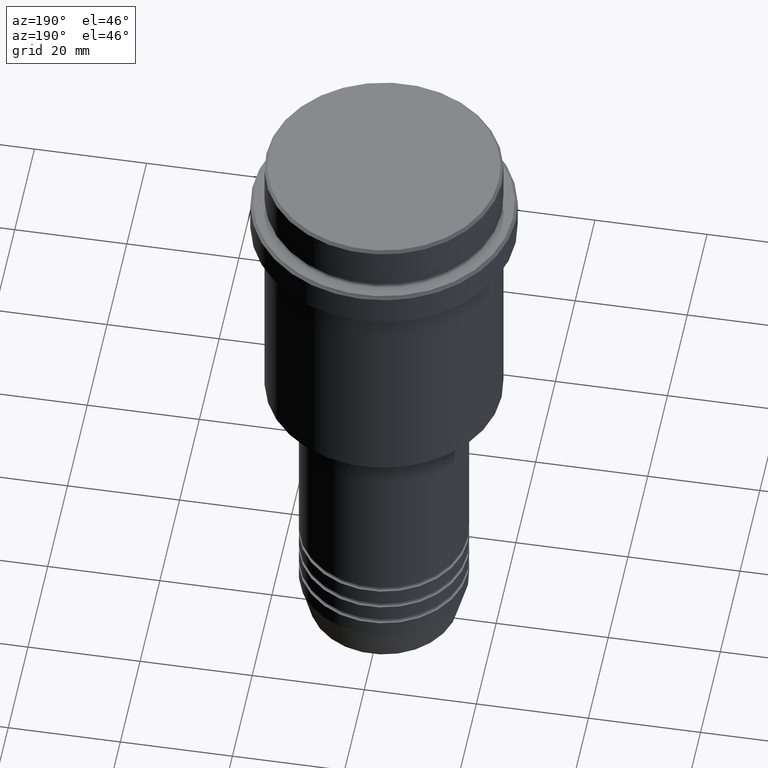
[diagram: clean part render]
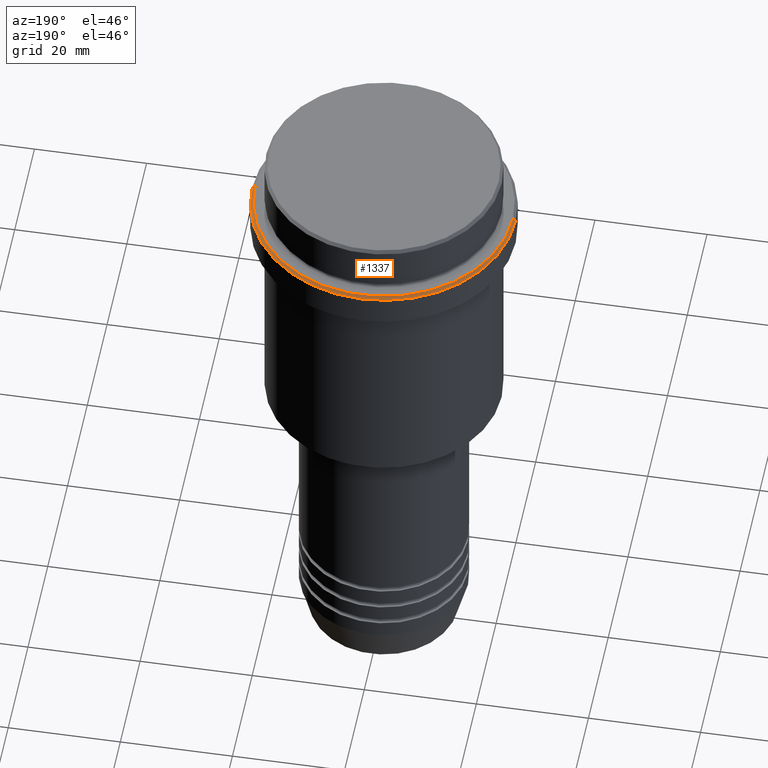
[diagram: same view with one face highlighted and labeled with its STEP entity id]
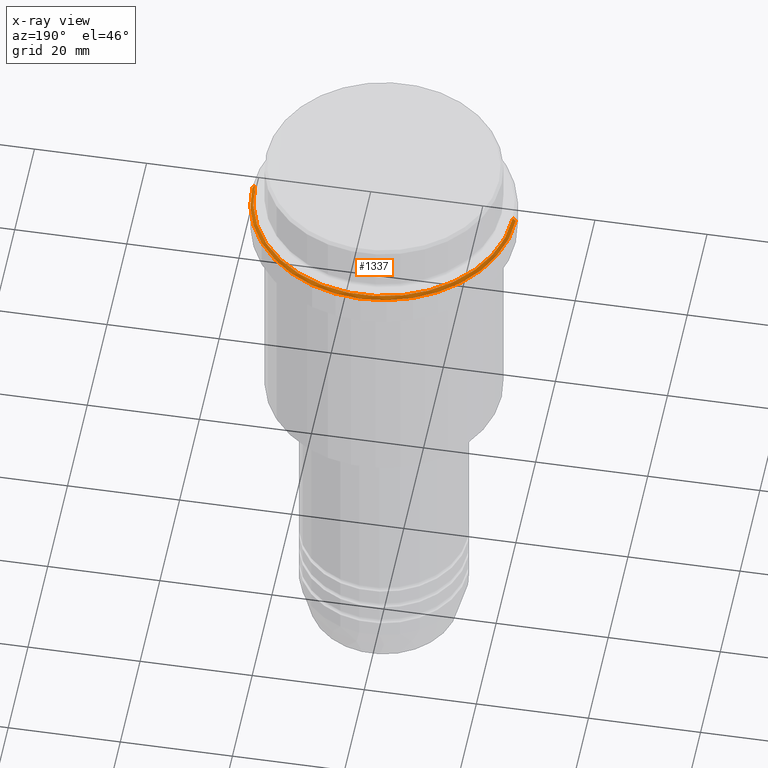
[diagram: x-ray of the same camera — body ghosted, the highlighted face saturated]
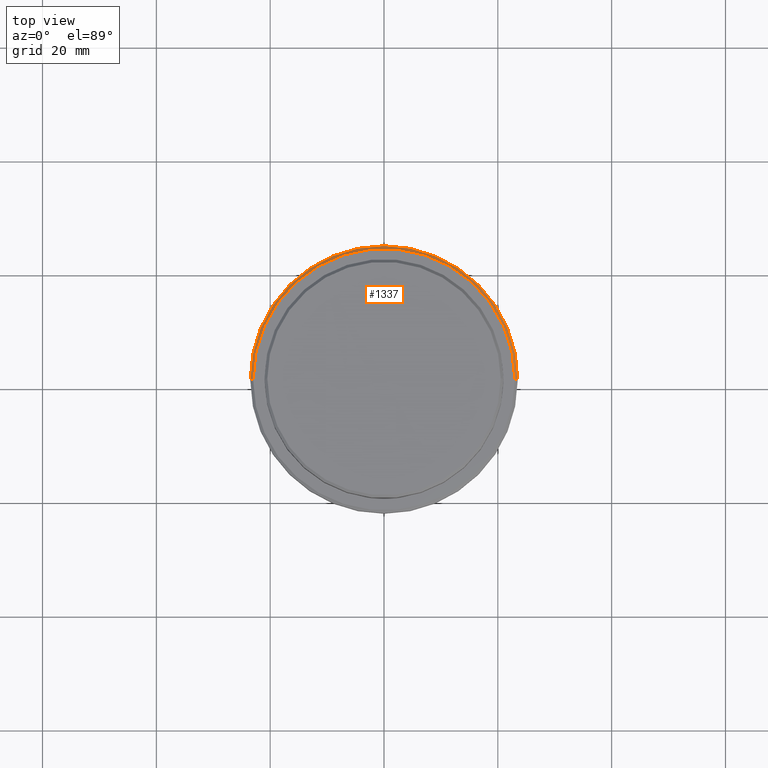
[diagram: same view with one face highlighted and labeled with its STEP entity id]
A machine part, auxiliary view. The second image highlights one B-rep face of the part: STEP entity #1337.
The next image is the same camera in x-ray: the body ghosted, the highlighted face saturated — about 0% of this face is hidden behind the body in this view.
A second angle (top view) of the same face is appended — the face is thin or edge-on in the first view.
In plain terms, the highlighted conical surface has half-angle 45 deg.
Its self-contained STEP definition (entity closure, byte-faithful):
#24 = EDGE_CURVE ( 'NONE', #1079, #582, #485, .T. ) ;
#33 = DIRECTION ( 'NONE',  ( -0.000000000000000000, -0.000000000000000000, 1.000000000000000000 ) ) ;
#47 = DIRECTION ( 'NONE',  ( 1.000000000000000000, 0.000000000000000000, 0.000000000000000000 ) ) ;
#68 = CARTESIAN_POINT ( 'NONE',  ( -23.00000000000001066, 0.000000000000000000, -9.000000000000001776 ) ) ;
#82 = DIRECTION ( 'NONE',  ( 0.000000000000000000, 0.000000000000000000, -1.000000000000000000 ) ) ;
#130 = CIRCLE ( 'NONE', #982, 23.50000000000000000 ) ;
#188 = CARTESIAN_POINT ( 'NONE',  ( 0.000000000000000000, 0.000000000000000000, -9.000000000000001776 ) ) ;
#292 = VECTOR ( 'NONE', #1054, 1000.000000000000114 ) ;
#314 = ORIENTED_EDGE ( 'NONE', *, *, #1312, .F. ) ;
#418 = ORIENTED_EDGE ( 'NONE', *, *, #725, .F. ) ;
#431 = CARTESIAN_POINT ( 'NONE',  ( -23.50000000000000000, 2.877919977996280320E-15, -9.500000000000015987 ) ) ;
#447 = EDGE_LOOP ( 'NONE', ( #1258, #559, #418, #314 ) ) ;
#485 = CIRCLE ( 'NONE', #788, 23.00000000000001066 ) ;
#559 = ORIENTED_EDGE ( 'NONE', *, *, #1386, .T. ) ;
#582 = VERTEX_POINT ( 'NONE', #68 ) ;
#583 = CARTESIAN_POINT ( 'NONE',  ( 0.000000000000000000, 0.000000000000000000, -9.500000000000015987 ) ) ;
#610 = FACE_OUTER_BOUND ( 'NONE', #447, .T. ) ;
#691 = CARTESIAN_POINT ( 'NONE',  ( 23.50000000000000000, 0.000000000000000000, -9.500000000000015987 ) ) ;
#725 = EDGE_CURVE ( 'NONE', #1061, #1149, #130, .T. ) ;
#756 = CARTESIAN_POINT ( 'NONE',  ( 23.00000000000001066, 2.816687638038913535E-15, -9.000000000000001776 ) ) ;
#763 = LINE ( 'NONE', #756, #1216 ) ;
#788 = AXIS2_PLACEMENT_3D ( 'NONE', #1016, #33, #1348 ) ;
#879 = DIRECTION ( 'NONE',  ( 0.7071067811865302533, 8.659560562354722084E-17, -0.7071067811865647812 ) ) ;
#891 = DIRECTION ( 'NONE',  ( -1.000000000000000000, 0.000000000000000000, 0.000000000000000000 ) ) ;
#918 = DIRECTION ( 'NONE',  ( 0.000000000000000000, 0.000000000000000000, -1.000000000000000000 ) ) ;
#982 = AXIS2_PLACEMENT_3D ( 'NONE', #583, #918, #47 ) ;
#1016 = CARTESIAN_POINT ( 'NONE',  ( 0.000000000000000000, 0.000000000000000000, -9.000000000000001776 ) ) ;
#1054 = DIRECTION ( 'NONE',  ( -0.7071067811865302533, 0.000000000000000000, -0.7071067811865647812 ) ) ;
#1061 = VERTEX_POINT ( 'NONE', #431 ) ;
#1079 = VERTEX_POINT ( 'NONE', #1111 ) ;
#1100 = AXIS2_PLACEMENT_3D ( 'NONE', #188, #82, #891 ) ;
#1111 = CARTESIAN_POINT ( 'NONE',  ( 23.00000000000001066, 2.847303808017596928E-15, -9.000000000000001776 ) ) ;
#1149 = VERTEX_POINT ( 'NONE', #691 ) ;
#1160 = CARTESIAN_POINT ( 'NONE',  ( -23.00000000000001066, 0.000000000000000000, -9.000000000000001776 ) ) ;
#1189 = CONICAL_SURFACE ( 'NONE', #1100, 23.00000000000001066, 0.7853981633974239651 ) ;
#1216 = VECTOR ( 'NONE', #879, 1000.000000000000114 ) ;
#1258 = ORIENTED_EDGE ( 'NONE', *, *, #24, .F. ) ;
#1289 = LINE ( 'NONE', #1160, #292 ) ;
#1312 = EDGE_CURVE ( 'NONE', #582, #1061, #1289, .T. ) ;
#1337 = ADVANCED_FACE ( 'NONE', ( #610 ), #1189, .T. ) ;
#1348 = DIRECTION ( 'NONE',  ( 1.000000000000000000, 0.000000000000000000, 0.000000000000000000 ) ) ;
#1386 = EDGE_CURVE ( 'NONE', #1079, #1149, #763, .T. ) ;